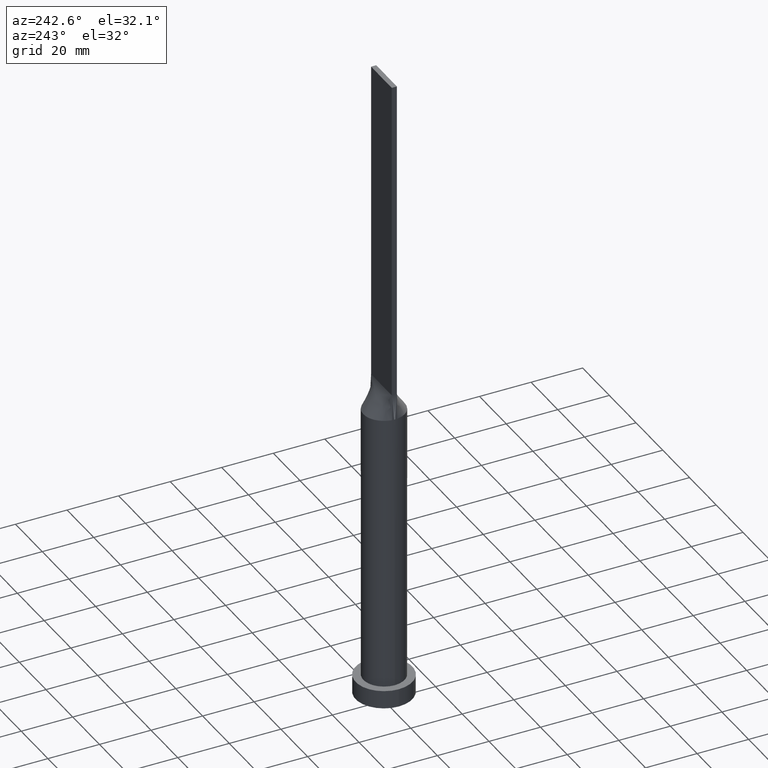
[diagram: clean part render]
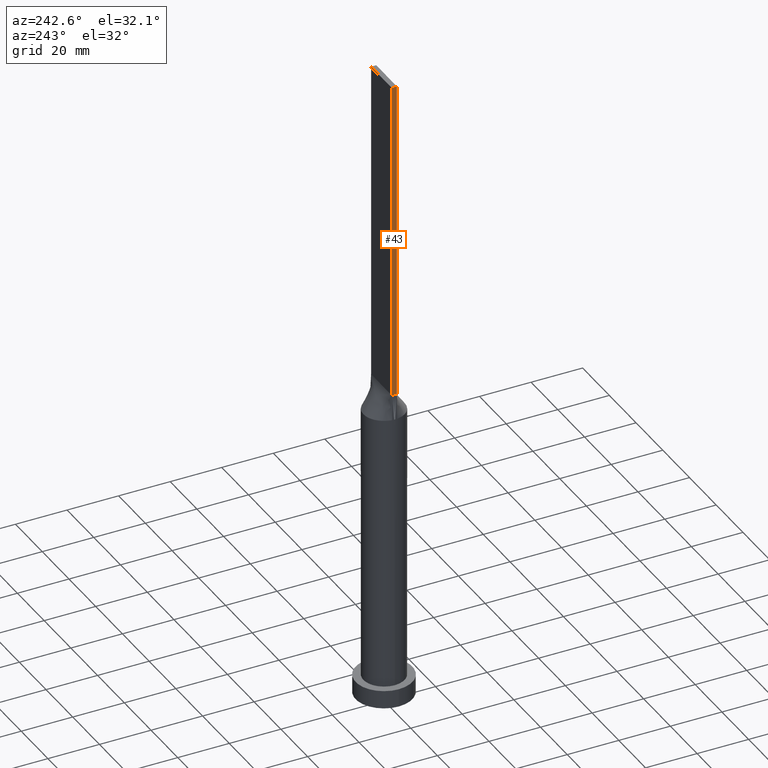
[diagram: same view with one face highlighted and labeled with its STEP entity id]
A machine part, auxiliary view. The second image highlights one B-rep face of the part: STEP entity #43.
In plain terms, the highlighted planar face has unit normal (1, 0, -0).
Its self-contained STEP definition (entity closure, byte-faithful):
#3 = ORIENTED_EDGE ( 'NONE', *, *, #418, .F. ) ;
#43 = ADVANCED_FACE ( 'NONE', ( #625 ), #187, .F. ) ;
#73 = VERTEX_POINT ( 'NONE', #481 ) ;
#102 = CARTESIAN_POINT ( 'NONE',  ( -7.750000000000000000, 1.000000000000000000, 250.0000000000000000 ) ) ;
#108 = ORIENTED_EDGE ( 'NONE', *, *, #111, .F. ) ;
#111 = EDGE_CURVE ( 'NONE', #73, #379, #232, .T. ) ;
#112 = EDGE_LOOP ( 'NONE', ( #245, #3, #108, #511 ) ) ;
#124 = CARTESIAN_POINT ( 'NONE',  ( -7.750000000000000000, 1.000000000000000000, 250.0000000000000000 ) ) ;
#144 = CARTESIAN_POINT ( 'NONE',  ( -7.750000000000000000, -0.9999999999999986677, 125.0000000000000000 ) ) ;
#153 = VERTEX_POINT ( 'NONE', #355 ) ;
#187 = PLANE ( 'NONE',  #472 ) ;
#190 = CARTESIAN_POINT ( 'NONE',  ( -7.750000000000000000, 1.000000000000000000, 125.0000000000000000 ) ) ;
#217 = CARTESIAN_POINT ( 'NONE',  ( -7.750000000000000000, -0.9999999999999986677, 250.0000000000000000 ) ) ;
#223 = VERTEX_POINT ( 'NONE', #144 ) ;
#232 = LINE ( 'NONE', #433, #297 ) ;
#245 = ORIENTED_EDGE ( 'NONE', *, *, #544, .T. ) ;
#284 = DIRECTION ( 'NONE',  ( -0.000000000000000000, -0.000000000000000000, -1.000000000000000000 ) ) ;
#297 = VECTOR ( 'NONE', #496, 1000.000000000000000 ) ;
#329 = DIRECTION ( 'NONE',  ( 1.000000000000000000, 0.000000000000000000, -0.000000000000000000 ) ) ;
#337 = VECTOR ( 'NONE', #462, 1000.000000000000000 ) ;
#344 = LINE ( 'NONE', #622, #458 ) ;
#355 = CARTESIAN_POINT ( 'NONE',  ( -7.750000000000000000, 1.000000000000000000, 125.0000000000000000 ) ) ;
#363 = LINE ( 'NONE', #102, #337 ) ;
#379 = VERTEX_POINT ( 'NONE', #217 ) ;
#394 = DIRECTION ( 'NONE',  ( 0.000000000000000000, -1.000000000000000000, 0.000000000000000000 ) ) ;
#400 = EDGE_CURVE ( 'NONE', #73, #153, #363, .T. ) ;
#418 = EDGE_CURVE ( 'NONE', #379, #223, #344, .T. ) ;
#433 = CARTESIAN_POINT ( 'NONE',  ( -7.750000000000000000, 1.000000000000000000, 250.0000000000000000 ) ) ;
#436 = VECTOR ( 'NONE', #394, 1000.000000000000000 ) ;
#458 = VECTOR ( 'NONE', #284, 1000.000000000000000 ) ;
#462 = DIRECTION ( 'NONE',  ( -0.000000000000000000, -0.000000000000000000, -1.000000000000000000 ) ) ;
#472 = AXIS2_PLACEMENT_3D ( 'NONE', #124, #329, #520 ) ;
#481 = CARTESIAN_POINT ( 'NONE',  ( -7.750000000000000000, 1.000000000000000000, 250.0000000000000000 ) ) ;
#496 = DIRECTION ( 'NONE',  ( 0.000000000000000000, -1.000000000000000000, 0.000000000000000000 ) ) ;
#511 = ORIENTED_EDGE ( 'NONE', *, *, #400, .T. ) ;
#520 = DIRECTION ( 'NONE',  ( -0.000000000000000000, 0.000000000000000000, -1.000000000000000000 ) ) ;
#544 = EDGE_CURVE ( 'NONE', #153, #223, #632, .T. ) ;
#622 = CARTESIAN_POINT ( 'NONE',  ( -7.750000000000000000, -0.9999999999999986677, 250.0000000000000000 ) ) ;
#625 = FACE_OUTER_BOUND ( 'NONE', #112, .T. ) ;
#632 = LINE ( 'NONE', #190, #436 ) ;